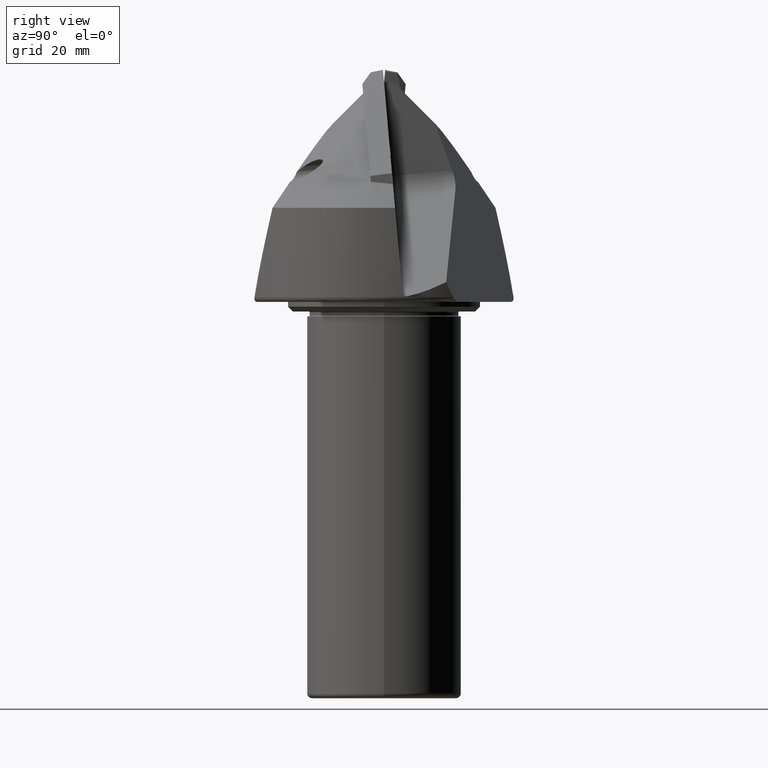
[diagram: clean part render]
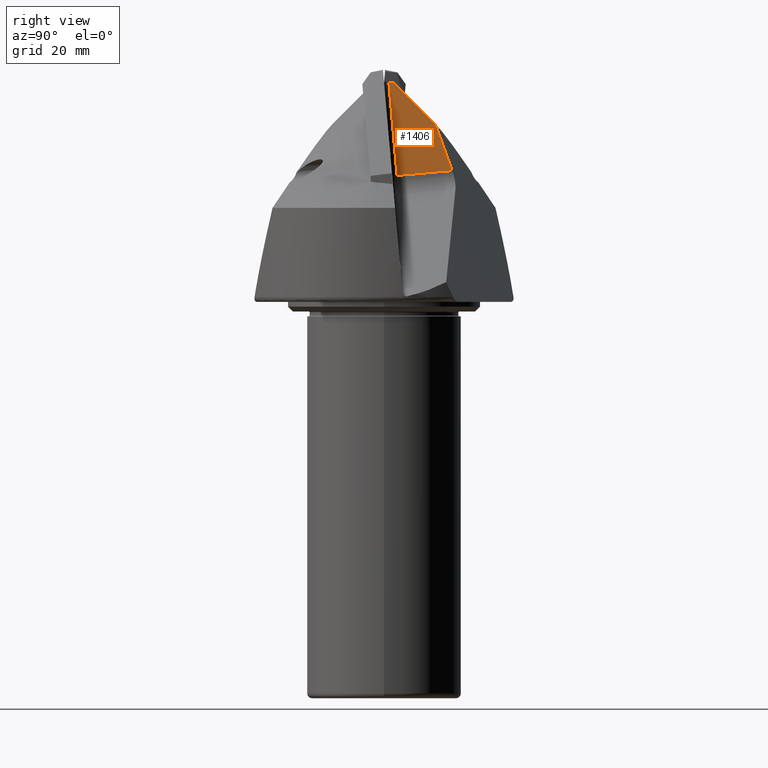
[diagram: same view with one face highlighted and labeled with its STEP entity id]
A machine part, right view. The second image highlights one B-rep face of the part: STEP entity #1406.
In plain terms, the highlighted planar face has unit normal (-1, 0, -0).
Its self-contained STEP definition (entity closure, byte-faithful):
#222=FACE_OUTER_BOUND('',#304,.T.);
#304=EDGE_LOOP('',(#1259,#1260,#1261,#1262,#1263));
#393=LINE('',#2176,#485);
#426=LINE('',#2554,#518);
#434=LINE('',#2629,#526);
#436=LINE('',#2633,#528);
#437=LINE('',#2635,#529);
#485=VECTOR('',#1735,10.);
#518=VECTOR('',#1954,10.);
#526=VECTOR('',#1990,10.);
#528=VECTOR('',#1996,10.);
#529=VECTOR('',#1999,10.);
#577=VERTEX_POINT('',#2173);
#578=VERTEX_POINT('',#2175);
#659=VERTEX_POINT('',#2551);
#660=VERTEX_POINT('',#2553);
#665=VERTEX_POINT('',#2628);
#735=EDGE_CURVE('',#577,#578,#393,.T.);
#850=EDGE_CURVE('',#659,#660,#426,.T.);
#866=EDGE_CURVE('',#665,#660,#434,.T.);
#869=EDGE_CURVE('',#577,#665,#436,.T.);
#870=EDGE_CURVE('',#578,#659,#437,.T.);
#1259=ORIENTED_EDGE('',*,*,#735,.F.);
#1260=ORIENTED_EDGE('',*,*,#869,.T.);
#1261=ORIENTED_EDGE('',*,*,#866,.T.);
#1262=ORIENTED_EDGE('',*,*,#850,.F.);
#1263=ORIENTED_EDGE('',*,*,#870,.F.);
#1332=PLANE('',#1583);
#1406=ADVANCED_FACE('',(#222),#1332,.F.);
#1583=AXIS2_PLACEMENT_3D('',#2634,#1997,#1998);
#1735=DIRECTION('',(-5.82241287061008E-15,-0.0871557427476581,0.996194698091746));
#1954=DIRECTION('',(4.46342222180471E-15,0.707106781186548,-0.707106781186547));
#1990=DIRECTION('',(-5.62530551205567E-15,-0.342020143325667,0.939692620785909));
#1996=DIRECTION('',(4.97084368350097E-18,0.996194698091746,0.0871557427476581));
#1997=DIRECTION('center_axis',(-1.,5.12408646444092E-16,-5.79982359422958E-15));
#1998=DIRECTION('ref_axis',(-5.82241287061008E-15,-0.0871557427476581,0.996194698091746));
#1999=DIRECTION('',(5.12408646444092E-16,1.,0.));
#2173=CARTESIAN_POINT('',(1.98730418492271E-12,2.69132626582185,-19.2882867364693));
#2175=CARTESIAN_POINT('',(5.14365964229361E-16,1.00381983754335,0.));
#2176=CARTESIAN_POINT('',(1.21846976952611E-13,2.82042051245478,-20.7638407274692));
#2551=CARTESIAN_POINT('',(1.0248172928882E-15,2.,0.));
#2553=CARTESIAN_POINT('',(5.51054565781889E-14,10.5675934001327,-8.56759340013271));
#2554=CARTESIAN_POINT('',(8.30838364216459E-14,15.,-13.));
#2628=CARTESIAN_POINT('',(1.98736114283123E-12,14.1061222422957,-18.2896214920665));
#2629=CARTESIAN_POINT('',(3.99680288865056E-14,9.79056831144139,-6.43273451460353));
#2633=CARTESIAN_POINT('',(1.98729921407903E-12,1.69513156773011,-19.375442479217));
#2634=CARTESIAN_POINT('Origin',(1.13242748511766E-13,1.69513156773011,-19.375442479217));
#2635=CARTESIAN_POINT('',(4.34300036082663E-16,0.847565783865053,0.));